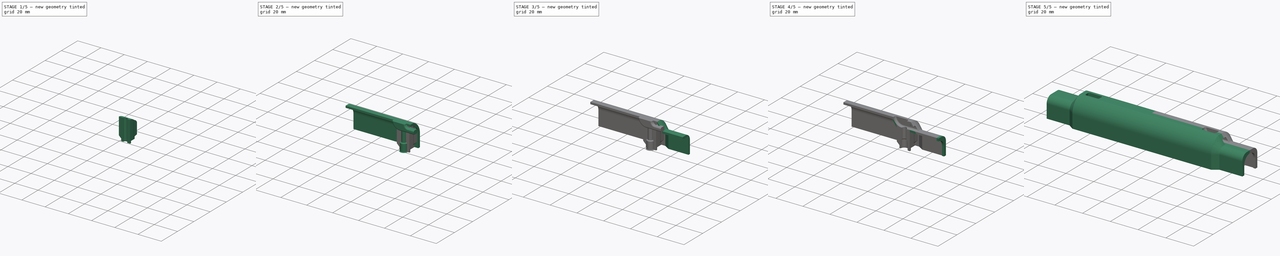
[diagram: build sequence overview — one tinted view per stage of 5, left to right]
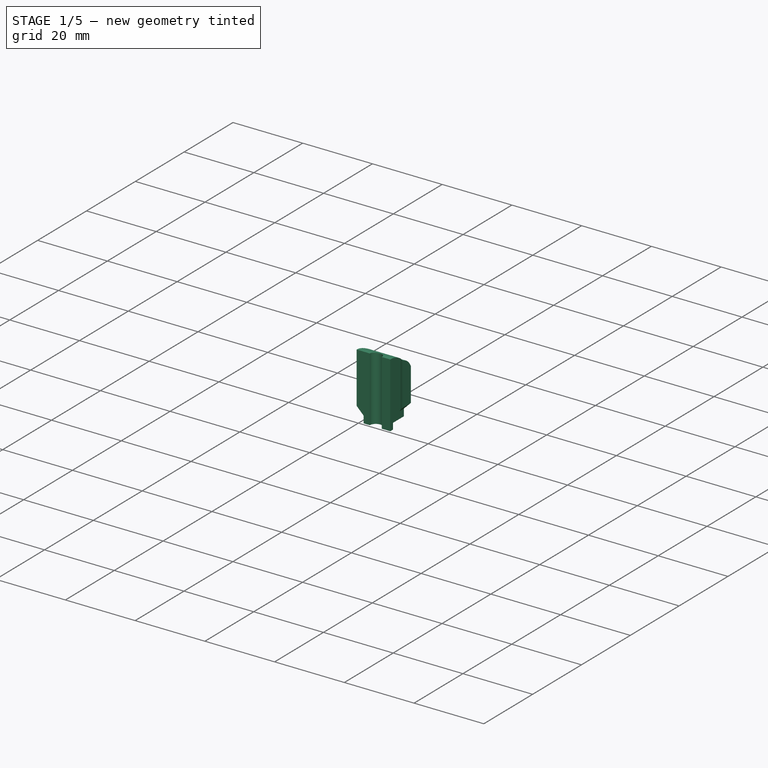
[diagram: stage 1 of 5 — iso view after this stage's code; geometry added in this stage tinted green]
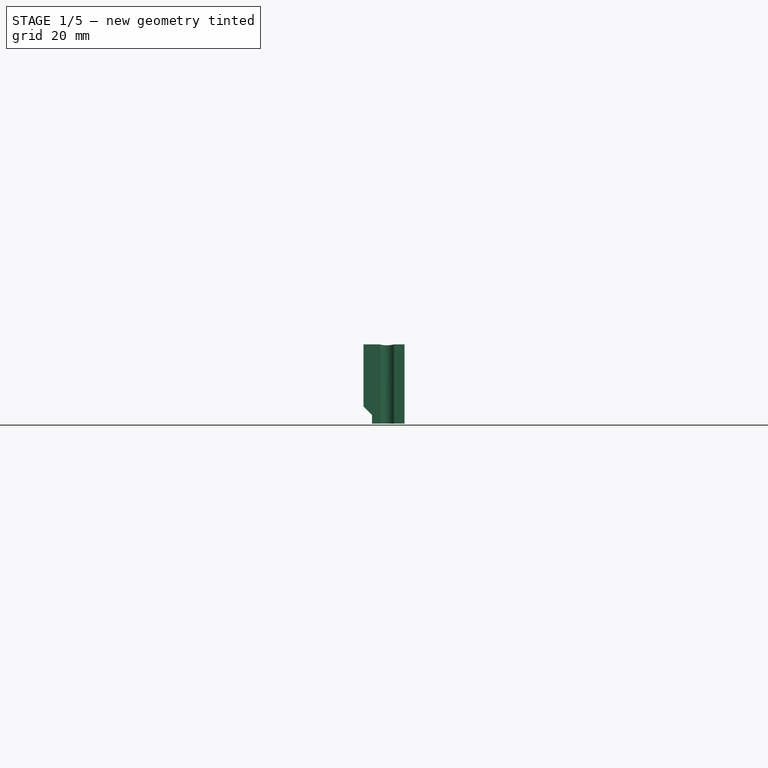
[diagram: stage 1 of 5 — front view after this stage's code; geometry added in this stage tinted green]
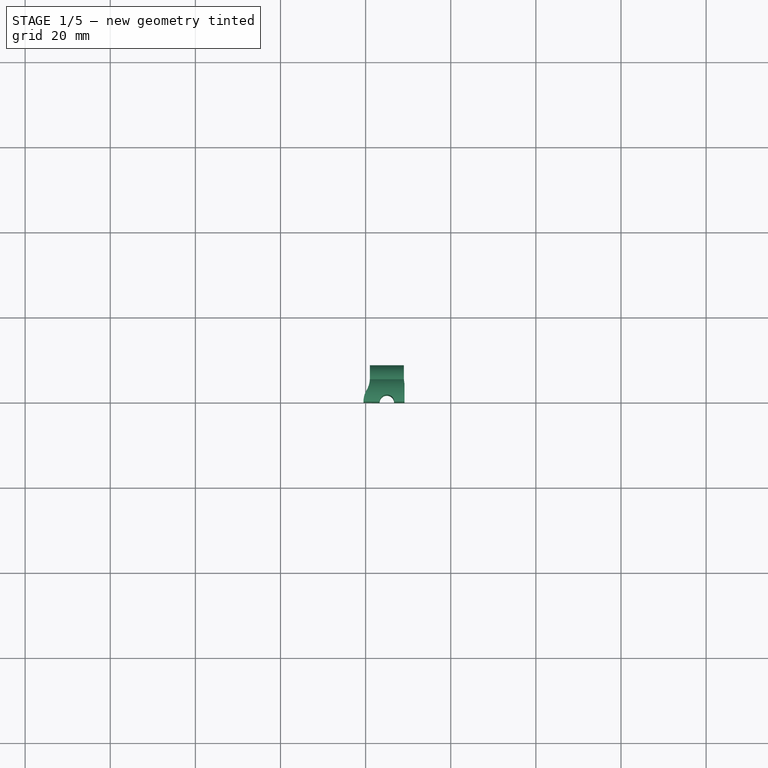
[diagram: stage 1 of 5 — top view after this stage's code; geometry added in this stage tinted green]
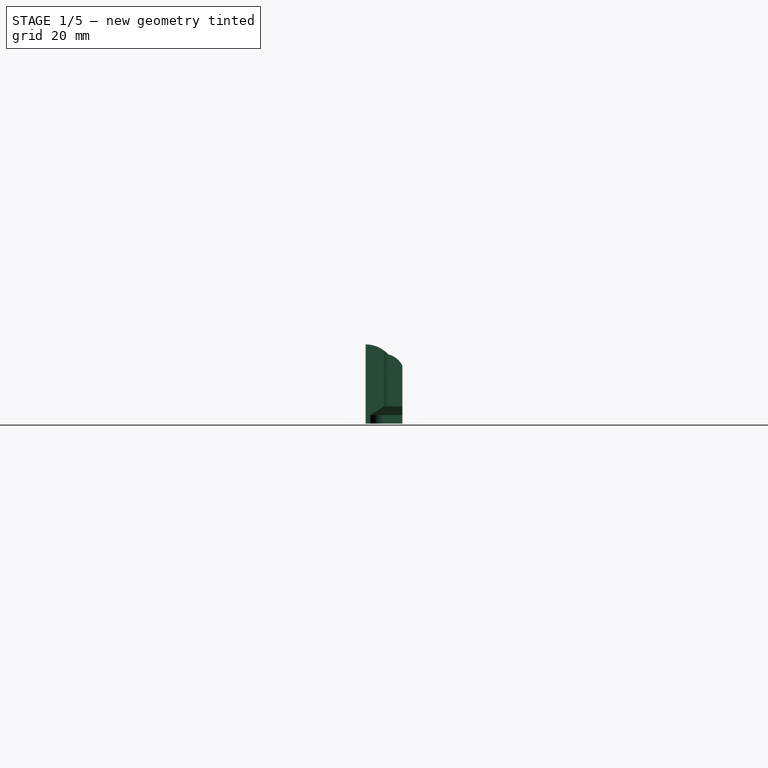
[diagram: stage 1 of 5 — right view after this stage's code; geometry added in this stage tinted green]
FCSTD DOCUMENT  (FreeCAD 0.19R24291 (Git))
Label: bottom-case
License: All rights reserved
LicenseURL: http://en.wikipedia.org/wiki/All_rights_reserved
objects: Sketcher::SketchObject×9, PartDesign::Pad×7, PartDesign::Plane×4, PartDesign::Body×3, Part::MultiFuse×3, PartDesign::AdditiveLoft×2, PartDesign::Pocket×2, PartDesign::Line×2, Part::Mirroring×2, PartDesign::Fillet×1, PartDesign::Revolution×1, Part::Cut×1
note: 50 computed .brp shape members not serialized (recipe doc carries the construction recipe); baked Part::Feature solids carry a one-line shape summary decoded from their .brp

FEATURE [Sketcher::SketchObject] Sketch007  label="CenterBase001"
  FullyConstrained = true
  MapMode = 5
  Placement = pos=(0,0,0) rot=(0.57735,0.57735,0.57735;2.0944rad)
  Support = -> [YZ_Plane001]
  sketch-geometry (9):
    g0: ArcOfCircle CenterX=4.15 CenterY=11.4 CenterZ=0 NormalX=0 NormalY=0 NormalZ=1 AngleXU=0 Radius=5 StartAngle=0 EndAngle=1.33692
    g1: LineSegment StartX=9.15 StartY=11.4 StartZ=0 EndX=9.15 EndY=0 EndZ=0
    g2: GeomPoint X=0 Y=2.5 Z=0
    g3: GeomPoint X=0 Y=16.4 Z=0
    g4: LineSegment StartX=4e-16 StartY=18.6 StartZ=0 EndX=4e-16 EndY=50 EndZ=0
    g5: LineSegment StartX=4e-16 StartY=50 StartZ=0 EndX=50 EndY=50 EndZ=0
    g6: LineSegment StartX=50 StartY=50 StartZ=0 EndX=50 EndY=0 EndZ=0
    g7: LineSegment StartX=50 StartY=0 StartZ=0 EndX=9.15 EndY=0 EndZ=0
    g8: ArcOfCircle CenterX=0 CenterY=11.4 CenterZ=0 NormalX=0 NormalY=0 NormalZ=1 AngleXU=0 Radius=7.2 StartAngle=0.741695 EndAngle=1.5708
  constraints (26):
    c: Vertical(g1)
    c: PointOnObject(g1,g-1)
    c: PointOnObject(g4,g-2)
    c: PointOnObject(g2,g-2)
    c: DistanceY(g-1,g2) = 2.5
    c: PointOnObject(g3,g-2)
    c: DistanceY(g2,g3) = 13.9
    c: Radius(g0) = 5
    c: Coincident(g4,g5)
    c: Horizontal(g5)
    c: Coincident(g5,g6)
    c: Vertical(g6)
    c: Coincident(g6,g7)
    c: Coincident(g7,g1)
    c: Horizontal(g7)
    c: Vertical(g4)
    c: DistanceX(g5,g5) = 50
    c: Equal(g5,g6)
    c: DistanceX(g-1,g1) = 9.15
    c: Tangent(g1,g0) = 1.5708
    c: DistanceY(g0,g3) = 5
    c: PointOnObject(g8,g-2)
    c: Coincident(g8,g0)
    c: Radius(g8) = 7.2
    c: DistanceY(g8,g3) = 5
    c: Coincident(g4,g8)
FEATURE [PartDesign::Pad] Pad004  label="MoutingBossTop"
  Direction = (1,1,1)
  Length = 4
  Length2 = 100
  Profile = -> Sketch004
  Reversed = true
  Type = 3
  UpToFace = -> XY_Plane001
FEATURE [PartDesign::Body] Body002  label="RingAndHoles"
  Group = -> [DatumPlane003,DatumLine001,Sketch010,Pad007,Fillet001,Sketch011,Revolution]
  Origin = -> Origin002
  Tip = -> Revolution
FEATURE [Sketcher::SketchObject] Sketch012  label="MoutingBossSketchLarge"
  AttachmentOffset = pos=(0,0,4) rot=(0,0,1;0rad)
  FullyConstrained = true
  MapMode = 5
  Placement = pos=(0,0,4) rot=(0,0,1;0rad)
  Support = -> [XY_Plane001]
  sketch-geometry (11):
    g0: ArcOfCircle CenterX=45 CenterY=0 CenterZ=0 NormalX=0 NormalY=0 NormalZ=1 AngleXU=0 Radius=1.7 StartAngle=0 EndAngle=3.14159
    g1: LineSegment StartX=39.5 StartY=7e-16 StartZ=0 EndX=43.3 EndY=2e-16 EndZ=0
    g2: LineSegment StartX=46.7 StartY=0 StartZ=0 EndX=49.15 EndY=0 EndZ=0
    g3: LineSegment StartX=41 StartY=8.65 StartZ=0 EndX=41 EndY=5.54527 EndZ=0
    g4: LineSegment StartX=41 StartY=8.65 StartZ=0 EndX=49 EndY=8.65 EndZ=0
    g5: LineSegment StartX=49 StartY=8.65 StartZ=0 EndX=49 EndY=5.54529 EndZ=0
    g6: ArcOfCircle CenterX=45 CenterY=0 CenterZ=0 NormalX=0 NormalY=0 NormalZ=1 AngleXU=0 Radius=5.5 StartAngle=2.61324 EndAngle=3.14159
    g7: ArcOfCircle CenterX=35.5 CenterY=5.54527 CenterZ=0 NormalX=0 NormalY=0 NormalZ=1 AngleXU=0 Radius=5.5 StartAngle=5.75483 EndAngle=6.28319
    g8: ArcOfCircle CenterX=54.5 CenterY=5.54527 CenterZ=0 NormalX=0 NormalY=0 NormalZ=1 AngleXU=0 Radius=5.5 StartAngle=3.14159 EndAngle=3.37568
    g9: LineSegment StartX=45 StartY=0 StartZ=0 EndX=45 EndY=8.65 EndZ=0
    g10: LineSegment StartX=49.15 StartY=0 StartZ=0 EndX=49.15 EndY=4.26953 EndZ=0
  constraints (32):
    c: PointOnObject(g0,g-1)
    c: PointOnObject(g0,g-1)
    c: PointOnObject(g0,g-1)
    c: PointOnObject(g1,g-1)
    c: PointOnObject(g2,g-1)
    c: Coincident(g2,g0)
    c: Coincident(g0,g1)
    c: Radius(g0) = 1.7
    c: DistanceX(g-1,g0) = 45
    c: Vertical(g3)
    c: Coincident(g4,g3)
    c: Coincident(g5,g4)
    c: Vertical(g5)
    c: Coincident(g6,g0)
    c: Coincident(g6,g1)
    c: Radius(g6) = 5.5
    c: Equal(g7,g6)
    c: Equal(g6,g8)
    c: Tangent(g7,g6) = 1.5708
    c: Tangent(g7,g3) = 1.5708
    c: Coincident(g9,g0)
    c: PointOnObject(g9,g4)
    c: Vertical(g9)
    c: DistanceX(g4,g4) = 8
    c: Symmetric(g4,g3,g9)
    c: DistanceY(g1,g3) = 8.65
    c: Coincident(g10,g2)
    c: Vertical(g10)
    c: Symmetric(g7,g8,g9)
    c: Coincident(g10,g8)
    c: DistanceX(g0,g2) = 4.15
    c: Coincident(g5,g8)
FEATURE [PartDesign::AdditiveLoft] AdditiveLoft001  label="MountingBossTransition"
  BaseFeature = -> Pad004
  Closed = false
  Profile = -> Sketch012
  Ruled = false
  Sections = -> [Sketch004]
FEATURE [PartDesign::Pad] Pad009  label="MountingBossBottom"
  BaseFeature = -> AdditiveLoft001
  Direction = (1,1,1)
  Length = 20
  Length2 = 100
  Profile = -> Sketch012
  Type = 0
FEATURE [PartDesign::Pocket] Pocket001  label="ProfileCutout"
  BaseFeature = -> Pad009
  Length = 5
  Length2 = 100
  Midplane = true
  Profile = -> Sketch007
  Type = 1
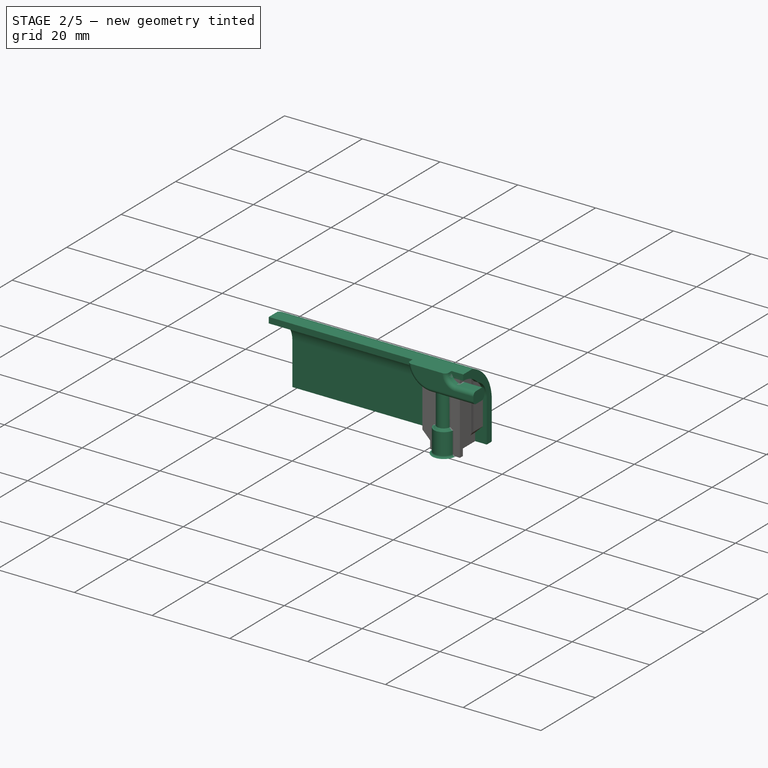
[diagram: stage 2 of 5 — iso view after this stage's code; geometry added in this stage tinted green]
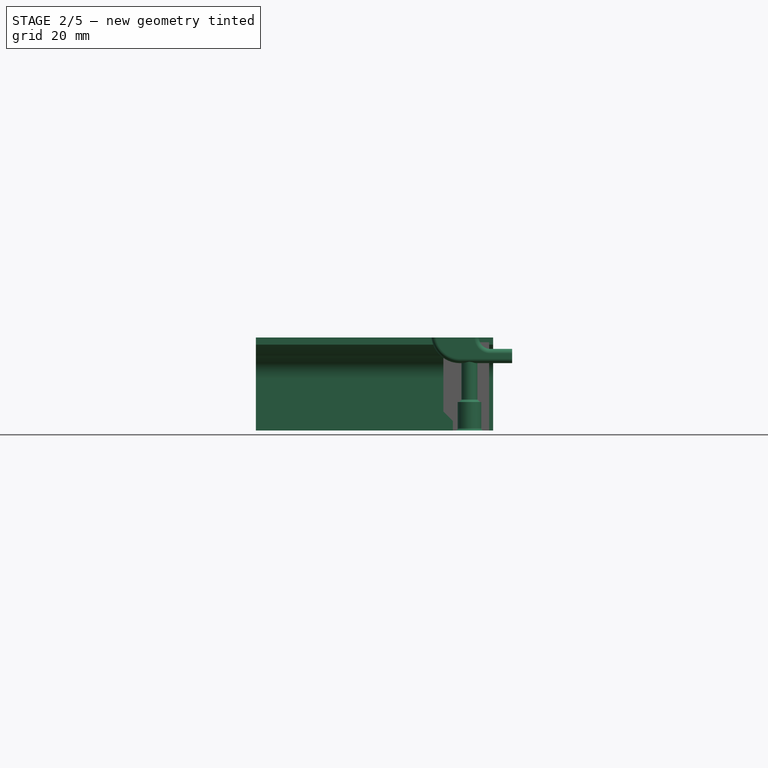
[diagram: stage 2 of 5 — front view after this stage's code; geometry added in this stage tinted green]
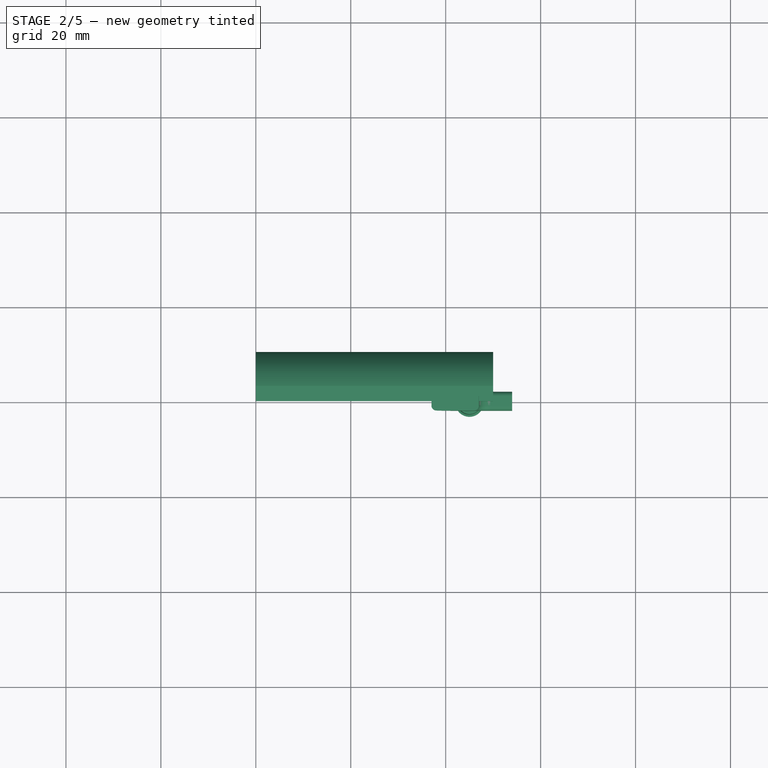
[diagram: stage 2 of 5 — top view after this stage's code; geometry added in this stage tinted green]
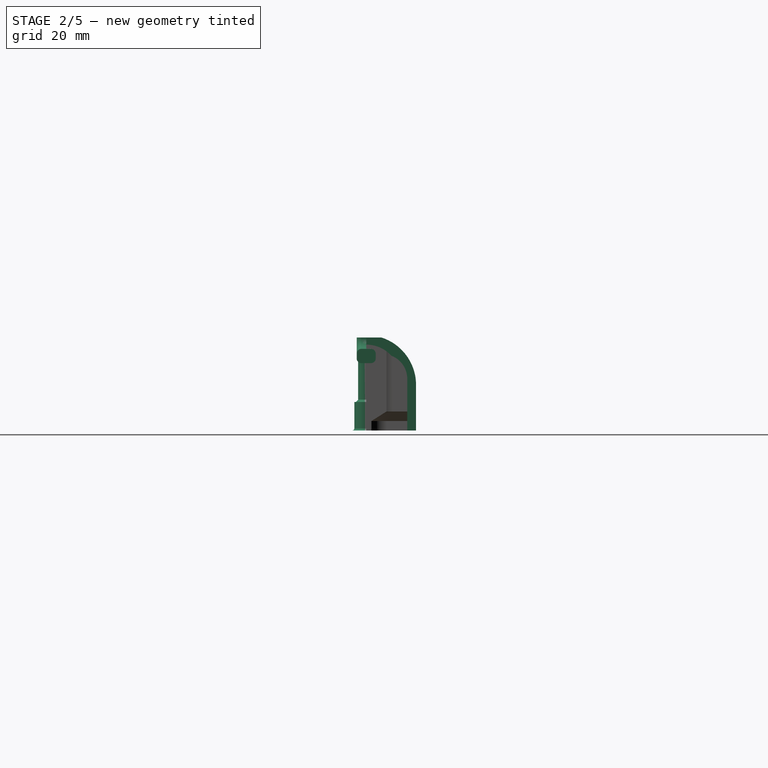
[diagram: stage 2 of 5 — right view after this stage's code; geometry added in this stage tinted green]
FEATURE [Sketcher::SketchObject] Sketch001  label="Slim1"
  AttachmentOffset = pos=(0,0,54) rot=(0,0,1;0rad)
  FullyConstrained = true
  MapMode = 5
  Placement = pos=(54,-1.2e-14,1.2e-14) rot=(0.57735,0.57735,0.57735;2.0944rad)
  Support = -> [YZ_Plane]
  sketch-geometry (11):
    g0: ArcOfCircle CenterX=3.2 CenterY=9.7 CenterZ=0 NormalX=0 NormalY=0 NormalZ=1 AngleXU=0 Radius=3 StartAngle=4.38246e-06 EndAngle=1.5708
    g1: ArcOfCircle CenterX=3.2 CenterY=9.7 CenterZ=0 NormalX=0 NormalY=0 NormalZ=1 AngleXU=0 Radius=4.5 StartAngle=0 EndAngle=1.5708
    g2: LineSegment StartX=6.2 StartY=9.70001 StartZ=0 EndX=6.2 EndY=0 EndZ=0
    g3: LineSegment StartX=7.7 StartY=9.7 StartZ=0 EndX=7.7 EndY=0 EndZ=0
    g4: LineSegment StartX=6.2 StartY=0 StartZ=0 EndX=7.7 EndY=0 EndZ=0
    g5: GeomPoint X=6 Y=0 Z=0
    g6: LineSegment StartX=3.2 StartY=14.2 StartZ=0 EndX=0 EndY=14.2 EndZ=0
    g7: LineSegment StartX=0 StartY=14.2 StartZ=0 EndX=0 EndY=12.7 EndZ=0
    g8: LineSegment StartX=0 StartY=12.7 StartZ=0 EndX=3.2 EndY=12.7 EndZ=0
    g9: GeomPoint X=0 Y=12.5 Z=0
    g10: GeomPoint X=0 Y=1 Z=0
  constraints (30):
    c: Coincident(g1,g0)
    c: Coincident(g2,g0)
    c: Vertical(g2)
    c: Vertical(g3)
    c: Coincident(g4,g2)
    c: Coincident(g4,g3)
    c: Horizontal(g4)
    c: PointOnObject(g2,g-1)
    c: PointOnObject(g5,g-1)
    c: Tangent(g3,g1) = 1.5708
    c: Horizontal(g6)
    c: Coincident(g7,g6)
    c: Vertical(g7)
    c: Coincident(g8,g7)
    c: Horizontal(g8)
    c: PointOnObject(g7,g-2)
    c: Tangent(g6,g1) = -1.5708
    c: Tangent(g8,g0) = 1.5708
    c: DistanceY(g7,g7) = 1.5
    c: PointOnObject(g9,g-2)
    c: DistanceY(g9,g7) = 0.2
    c: Radius(g0) = 3
    c: DistanceX(g-1,g5) = 6
    c: DistanceX(g5,g2) = 0.2
    c: PointOnObject(g10,g-2)
    c: DistanceY(g-1,g10) = 1
    c: DistanceY(g10,g9) = 11.5
    c: Equal(g7,g4)
    c: DistanceX(g-1,g3) = 7.7
    c: DistanceX(g8,g8) = 3.2
FEATURE [PartDesign::Plane] DatumPlane  label="FrontPlane"
  AttachmentOffset = pos=(0,0,69) rot=(0,0,1;0rad)
  Length = 60
  MapMode = 5
  Placement = pos=(69,-1.53e-14,1.53e-14) rot=(0.57735,0.57735,0.57735;2.0944rad)
  ResizeMode = 0
  Support = -> [YZ_Plane]
  Width = 60
FEATURE [Sketcher::SketchObject] Sketch003
  FullyConstrained = true
  MapMode = 5
  Placement = pos=(69,-1.53e-14,1.53e-14) rot=(0.57735,0.57735,0.57735;2.0944rad)
  Support = -> [DatumPlane]
  sketch-geometry (5):
    g0: LineSegment StartX=6 StartY=12.7 StartZ=0 EndX=0 EndY=12.7 EndZ=0
    g1: LineSegment StartX=0 StartY=12.7 StartZ=0 EndX=0 EndY=0 EndZ=0
    g2: LineSegment StartX=0 StartY=0 StartZ=0 EndX=6.2 EndY=0 EndZ=0
    g3: LineSegment StartX=6.2 StartY=0 StartZ=0 EndX=6.2 EndY=12.5 EndZ=0
    g4: ArcOfCircle CenterX=6 CenterY=12.5 CenterZ=0 NormalX=0 NormalY=0 NormalZ=1 AngleXU=0 Radius=0.2 StartAngle=0 EndAngle=1.5708
  constraints (13):
    c: Horizontal(g0)
    c: Coincident(g0,g1)
    c: Vertical(g1)
    c: Coincident(g1,g2)
    c: Horizontal(g2)
    c: Coincident(g2,g3)
    c: Vertical(g3)
    c: Tangent(g4,g0) = -1.5708
    c: Tangent(g4,g3) = -1.5708
    c: Coincident(g1,g-1)
    c: DistanceY(g1,g1) = 12.7
    c: DistanceX(g2,g2) = 6.2
    c: Radius(g4) = 0.2
FEATURE [Sketcher::SketchObject] Sketch004  label="MoutingBossSketch"
  AttachmentOffset = pos=(0,0,2) rot=(0,0,1;0rad)
  FullyConstrained = true
  MapMode = 5
  Placement = pos=(0,0,2) rot=(0,0,1;0rad)
  Support = -> [XY_Plane001]
  sketch-geometry (11):
    g0: ArcOfCircle CenterX=45 CenterY=0 CenterZ=0 NormalX=0 NormalY=0 NormalZ=1 AngleXU=0 Radius=1.7 StartAngle=0 EndAngle=3.14159
    g1: LineSegment StartX=41.5 StartY=0 StartZ=0 EndX=43.3 EndY=2e-16 EndZ=0
    g2: LineSegment StartX=46.7 StartY=0 StartZ=0 EndX=49.15 EndY=0 EndZ=0
    g3: LineSegment StartX=43 StartY=8.65 StartZ=0 EndX=43 EndY=4.33013 EndZ=0
    g4: LineSegment StartX=43 StartY=8.65 StartZ=0 EndX=47 EndY=8.65 EndZ=0
    g5: LineSegment StartX=47 StartY=8.65 StartZ=0 EndX=47 EndY=4.33013 EndZ=0
    g6: ArcOfCircle CenterX=45 CenterY=0 CenterZ=0 NormalX=0 NormalY=0 NormalZ=1 AngleXU=0 Radius=3.5 StartAngle=2.47465 EndAngle=3.14159
    g7: ArcOfCircle CenterX=39.5 CenterY=4.33013 CenterZ=0 NormalX=0 NormalY=0 NormalZ=1 AngleXU=0 Radius=3.5 StartAngle=5.61624 EndAngle=6.28319
    g8: ArcOfCircle CenterX=50.5 CenterY=4.33013 CenterZ=0 NormalX=0 NormalY=0 NormalZ=1 AngleXU=0 Radius=3.5 StartAngle=3.14159 EndAngle=4.31641
    g9: LineSegment StartX=45 StartY=0 StartZ=0 EndX=45 EndY=8.65 EndZ=0
    g10: LineSegment StartX=49.15 StartY=0 StartZ=0 EndX=49.15 EndY=1.10096 EndZ=0
  constraints (32):
    c: PointOnObject(g0,g-1)
    c: PointOnObject(g0,g-1)
    c: PointOnObject(g0,g-1)
    c: PointOnObject(g1,g-1)
    c: PointOnObject(g2,g-1)
    c: Coincident(g2,g0)
    c: Coincident(g0,g1)
    c: Radius(g0) = 1.7
    c: DistanceX(g-1,g0) = 45
    c: Vertical(g3)
    c: Coincident(g4,g3)
    c: Coincident(g5,g4)
    c: Vertical(g5)
    c: Coincident(g6,g0)
    c: Coincident(g6,g1)
    c: Radius(g6) = 3.5
    c: Equal(g7,g6)
    c: Equal(g6,g8)
    c: Tangent(g7,g6) = 1.5708
    c: Tangent(g7,g3) = 1.5708
    c: Coincident(g9,g0)
    c: PointOnObject(g9,g4)
    c: Vertical(g9)
    c: DistanceX(g4,g4) = 4
    c: Symmetric(g4,g3,g9)
    c: DistanceY(g1,g3) = 8.65
    c: Coincident(g10,g2)
    c: Vertical(g10)
    c: Symmetric(g7,g8,g9)
    c: Coincident(g10,g8)
    c: DistanceX(g0,g2) = 4.15
    c: Coincident(g5,g8)
FEATURE [Sketcher::SketchObject] Sketch006  label="ProbeHole"
  FullyConstrained = true
  MapMode = 5
  Placement = pos=(69,-1.53e-14,1.53e-14) rot=(0.57735,0.57735,0.57735;2.0944rad)
  Support = -> [DatumPlane]
  sketch-geometry (8):
    g0: ArcOfCircle CenterX=3.2 CenterY=9.7 CenterZ=0 NormalX=0 NormalY=0 NormalZ=1 AngleXU=0 Radius=4.5 StartAngle=1.67e-14 EndAngle=1.5708
    g1: LineSegment StartX=5.7 StartY=6.5 StartZ=0 EndX=5.7 EndY=0 EndZ=0
    g2: LineSegment StartX=7.7 StartY=9.7 StartZ=0 EndX=7.7 EndY=0 EndZ=0
    g3: LineSegment StartX=5.7 StartY=0 StartZ=0 EndX=7.7 EndY=0 EndZ=0
    g4: LineSegment StartX=3.2 StartY=14.2 StartZ=0 EndX=4e-16 EndY=14.2 EndZ=0
    g5: LineSegment StartX=4e-16 StartY=14.2 StartZ=0 EndX=4e-16 EndY=12.2 EndZ=0
    g6: GeomPoint X=0 Y=1 Z=0
    g7: ArcOfCircle CenterX=0 CenterY=6.5 CenterZ=0 NormalX=0 NormalY=0 NormalZ=1 AngleXU=0 Radius=5.7 StartAngle=0 EndAngle=1.5708
  constraints (23):
    c: Vertical(g1)
    c: Vertical(g2)
    c: Coincident(g3,g1)
    c: Coincident(g3,g2)
    c: Horizontal(g3)
    c: PointOnObject(g1,g-1)
    c: Tangent(g2,g0) = 1.5708
    c: Horizontal(g4)
    c: Coincident(g5,g4)
    c: Vertical(g5)
    c: Tangent(g4,g0) = -1.5708
    c: PointOnObject(g6,g-2)
    c: DistanceY(g-1,g6) = 1
    c: Radius(g0) = 4.5
    c: PointOnObject(g7,g-2)
    c: PointOnObject(g7,g-2)
    c: Radius(g7) = 5.7
    c: Tangent(g1,g7) = 1.5708
    c: DistanceY(g6,g7) = 5.5
    c: DistanceY(g6,g4) = 13.2
    c: Coincident(g5,g7)
    c: DistanceX(g-1,g2) = 7.7
    c: DistanceX(g-1,g1) = 5.7
FEATURE [PartDesign::Plane] DatumPlane001  label="WideEndPlane"
  AttachmentOffset = pos=(0,0,50) rot=(0,0,1;0rad)
  Length = 60
  MapMode = 5
  Placement = pos=(50,-1.11e-14,1.11e-14) rot=(0.57735,0.57735,0.57735;2.0944rad)
  ResizeMode = 0
  Support = -> [YZ_Plane]
  Width = 60
FEATURE [Sketcher::SketchObject] Sketch  label="CenterBase"
  FullyConstrained = true
  MapMode = 5
  Placement = pos=(50,-1.11e-14,1.11e-14) rot=(0.57735,0.57735,0.57735;2.0944rad)
  Support = -> [DatumPlane001]
  sketch-geometry (12):
    g0: LineSegment StartX=8.65 StartY=10.9 StartZ=0 EndX=8.65 EndY=0 EndZ=0
    g1: LineSegment StartX=10.5 StartY=9.5995 StartZ=0 EndX=10.5 EndY=0 EndZ=0
    g2: LineSegment StartX=8.65 StartY=0 StartZ=0 EndX=10.5 EndY=0 EndZ=0
    g3: GeomPoint X=9 Y=0 Z=0
    g4: LineSegment StartX=4e-16 StartY=19.6 StartZ=0 EndX=4e-16 EndY=18.1 EndZ=0
    g5: GeomPoint X=0 Y=2 Z=0
    g6: GeomPoint X=0 Y=15.9 Z=0
    g7: ArcOfCircle CenterX=0 CenterY=10.9 CenterZ=0 NormalX=0 NormalY=0 NormalZ=1 AngleXU=0 Radius=7.2 StartAngle=0.739541 EndAngle=1.5708
    g8: ArcOfCircle CenterX=0 CenterY=9.5995 CenterZ=0 NormalX=0 NormalY=0 NormalZ=1 AngleXU=0 Radius=10.5 StartAngle=1e-16 EndAngle=1.26111
    g9: ArcOfCircle CenterX=3.45 CenterY=10.9 CenterZ=0 NormalX=0 NormalY=0 NormalZ=1 AngleXU=0 Radius=5.2 StartAngle=0 EndAngle=1.2031
    g10: LineSegment StartX=9.82512 StartY=13.3031 StartZ=0 EndX=8.31577 EndY=12.7342 EndZ=0
    g11: LineSegment StartX=3.2 StartY=19.6 StartZ=0 EndX=4e-16 EndY=19.6 EndZ=0
  constraints (38):
    c: Vertical(g0)
    c: Vertical(g1)
    c: Coincident(g2,g0)
    c: Coincident(g2,g1)
    c: Horizontal(g2)
    c: PointOnObject(g0,g-1)
    c: PointOnObject(g3,g-1)
    c: DistanceX(g-1,g3) = 9
    c: Vertical(g4)
    c: PointOnObject(g4,g-2)
    c: DistanceX(g3,g1) = 1.5
    c: PointOnObject(g5,g-2)
    c: DistanceY(g-1,g5) = 2
    c: PointOnObject(g6,g-2)
    c: DistanceY(g5,g6) = 13.9
    c: DistanceX(g-1,g1) = 10.5
    c: PointOnObject(g7,g-2)
    c: Coincident(g4,g7)
    c: Radius(g7) = 7.2
    c: DistanceY(g7,g6) = 5
    c: Tangent(g8,g1) = 1.5708
    c: DistanceY(g4,g4) = 1.5
    c: DistanceX(g-1,g0) = 8.65
    c: Radius(g9) = 5.2
    c: Tangent(g9,g0) = 1.5708
    c: DistanceY(g9,g6) = 5
    c: Coincident(g7,g9)
    c: PointOnObject(g10,g8)
    c: PointOnObject(g10,g9)
    c: Perpendicular(g8,g10)
    c: PointOnObject(g9,g10)
    c: Distance(g10) = 1.61302
    c: PointOnObject(g8,g-2)
    c: Coincident(g11,g8)
    c: Coincident(g11,g4)
    c: Horizontal(g11)
    c: DistanceX(g11,g11) = 3.2
    c: DistanceY(g6,g4) = 2.2
FEATURE [PartDesign::Pad] Pad  label="CenterBody"
  Direction = (1,1,1)
  Length = 50
  Length2 = 100
  Placement = pos=(50,-1.11e-14,1.11e-14) rot=(0.57735,0.57735,0.57735;2.0944rad)
  Profile = -> Sketch
  Reversed = true
  Type = 3
  UpToFace = -> YZ_Plane
FEATURE [PartDesign::Body] Body  label="Case"
  Group = -> [DatumPlane001,DatumPlane,DatumLine,DatumPlane002,Sketch,Sketch001,Pad,AdditiveLoft,Pad001,Pocket,Sketch003,Sketch006,Pad003,Pad008]
  Origin = -> Origin
  Tip = -> Pad008
FEATURE [PartDesign::Line] DatumLine001  label="MountingHoleAxis"
  AttacherType = Attacher::AttachEngineLine
  AttachmentOffset = pos=(45,0,0) rot=(0,0,1;0rad)
  Length = 20
  MapMode = 29
  Placement = pos=(45,0,1.5e-14) rot=(0,0,1;0rad)
  ResizeMode = 0
  Support = -> [Z_Axis002]
FEATURE [Sketcher::SketchObject] Sketch010
  ExternalGeometry = -> [DatumLine001]
  FullyConstrained = true
  MapMode = 5
  Placement = pos=(0,0,0) rot=(1,0,0;1.5708rad)
  Support = -> [XZ_Plane002]
  sketch-geometry (7):
    g0: LineSegment StartX=49.4 StartY=17.2 StartZ=0 EndX=54 EndY=17.2 EndZ=0
    g1: LineSegment StartX=54 StartY=17.2 StartZ=0 EndX=54 EndY=14.2 EndZ=0
    g2: LineSegment StartX=54 StartY=14.2 StartZ=0 EndX=43 EndY=14.2 EndZ=0
    g3: LineSegment StartX=37 StartY=19.6 StartZ=0 EndX=47 EndY=19.6 EndZ=0
    g4: GeomPoint X=45 Y=19.6 Z=0
    g5: ArcOfCircle CenterX=43 CenterY=20.2333 CenterZ=0 NormalX=0 NormalY=0 NormalZ=1 AngleXU=0 Radius=6.03333 StartAngle=3.24676 EndAngle=4.71239
    g6: ArcOfCircle CenterX=49.4 CenterY=19.6 CenterZ=0 NormalX=0 NormalY=0 NormalZ=1 AngleXU=0 Radius=2.4 StartAngle=3.14159 EndAngle=4.71239
  constraints (21):
    c: Coincident(g1,g0)
    c: Vertical(g1)
    c: Horizontal(g2)
    c: Horizontal(g0)
    c: Coincident(g1,g2)
    c: DistanceY(g-1,g1) = 14.2
    c: DistanceY(g1,g1) = 3
    c: DistanceX(g-1,g1) = 54
    c: Horizontal(g3)
    c: DistanceY(g1,g3) = 5.4
    c: DistanceX(g3,g3) = 10
    c: PointOnObject(g4,g3)
    c: DistanceX(g4,g3) = 2
    c: DistanceX(g3,g4) = 8
    c: PointOnObject(g4,g-3)
    c: Coincident(g3,g5)
    c: Tangent(g5,g2) = 1.5708
    c: DistanceX(g2,g4) = 2
    c: Coincident(g6,g3)
    c: Tangent(g6,g0) = -1.5708
    c: PointOnObject(g6,g3)
FEATURE [PartDesign::Pad] Pad007  label="RingHoleNegative"
  Direction = (1,1,1)
  Length = 4
  Length2 = 100
  Midplane = true
  Placement = pos=(0,0,0) rot=(1,0,0;1.5708rad)
  Profile = -> Sketch010
  Type = 0
FEATURE [PartDesign::Fillet] Fillet001  label="RingHoleFilet"
  Base = -> Pad007 [Edge3,Edge4,Edge13,Edge12,Edge9,Edge10,Edge18,Edge17]
  BaseFeature = -> Pad007
  Placement = pos=(0,0,0) rot=(1,0,0;1.5708rad)
  Radius = 0.99
  SupportTransform = false
FEATURE [PartDesign::Plane] DatumPlane003  label="BottomPlane"
  AttachmentOffset = pos=(0,0,19.6) rot=(0,0,1;0rad)
  Length = 91.5698
  MapMode = 2
  Placement = pos=(0,0,19.6) rot=(0,0,1;0rad)
  ResizeMode = 0
  Support = -> [XY_Plane002]
  Width = 62.5698
FEATURE [Sketcher::SketchObject] Sketch011
  ExternalGeometry = -> [DatumPlane003,DatumLine001]
  FullyConstrained = true
  MapMode = 5
  Placement = pos=(0,0,0) rot=(1,0,0;1.5708rad)
  Support = -> [XZ_Plane002]
  sketch-geometry (8):
    g0: LineSegment StartX=45 StartY=19.6 StartZ=0 EndX=46.7 EndY=19.6 EndZ=0
    g1: LineSegment StartX=46.7 StartY=19.6 StartZ=0 EndX=46.7 EndY=6.5 EndZ=0
    g2: LineSegment StartX=45 StartY=19.6 StartZ=0 EndX=45 EndY=0 EndZ=0
    g3: LineSegment StartX=45 StartY=0 StartZ=0 EndX=48 EndY=0 EndZ=0
    g4: ArcOfCircle CenterX=48 CenterY=0.5 CenterZ=0 NormalX=0 NormalY=0 NormalZ=1 AngleXU=0 Radius=0.5 StartAngle=3.14159 EndAngle=4.71239
    g5: LineSegment StartX=47.5 StartY=0.5 StartZ=0 EndX=47.5 EndY=6 EndZ=0
    g6: LineSegment StartX=47.5 StartY=6 StartZ=0 EndX=47.2 EndY=6 EndZ=0
    g7: LineSegment StartX=47.2 StartY=6 StartZ=0 EndX=46.7 EndY=6.5 EndZ=0
  constraints (23):
    c: Horizontal(g0)
    c: Coincident(g1,g0)
    c: Vertical(g1)
    c: Coincident(g2,g0)
    c: Vertical(g2)
    c: PointOnObject(g2,g-1)
    c: Coincident(g3,g2)
    c: Vertical(g5)
    c: Coincident(g6,g5)
    c: Horizontal(g6)
    c: Coincident(g7,g6)
    c: Coincident(g1,g7)
    c: Tangent(g5,g4) = 1.5708
    c: Tangent(g4,g3) = -1.5708
    c: Horizontal(g3)
    c: PointOnObject(g2,g-4)
    c: Angle(g6,g7) = 2.35619
    c: DistanceX(g2,g4) = 2.5
    c: Radius(g4) = 0.5
    c: DistanceX(g2,g1) = 1.7
    c: DistanceY(g6,g1) = 0.5
    c: DistanceY(g2,g6) = 6
    c: PointOnObject(g0,g-3)
FEATURE [PartDesign::Revolution] Revolution  label="ScrewHoleRevolution"
  Angle = 360
  Axis = (-3e-16,3e-16,1)
  Base = (45,0,1.5e-14)
  BaseFeature = -> Fillet001
  Placement = pos=(0,0,0) rot=(1,0,0;1.5708rad)
  Profile = -> Sketch011
  ReferenceAxis = -> DatumLine001
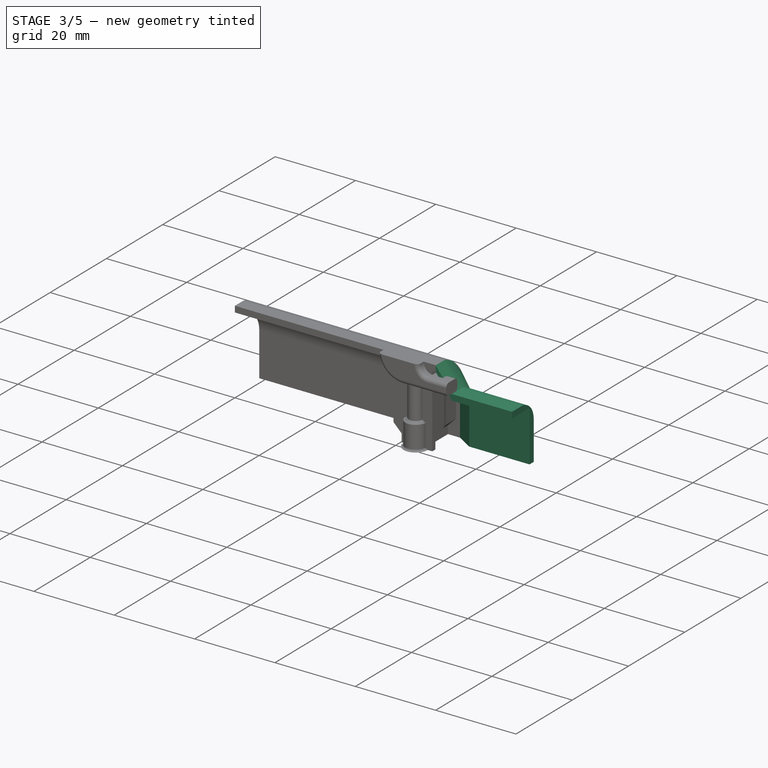
[diagram: stage 3 of 5 — iso view after this stage's code; geometry added in this stage tinted green]
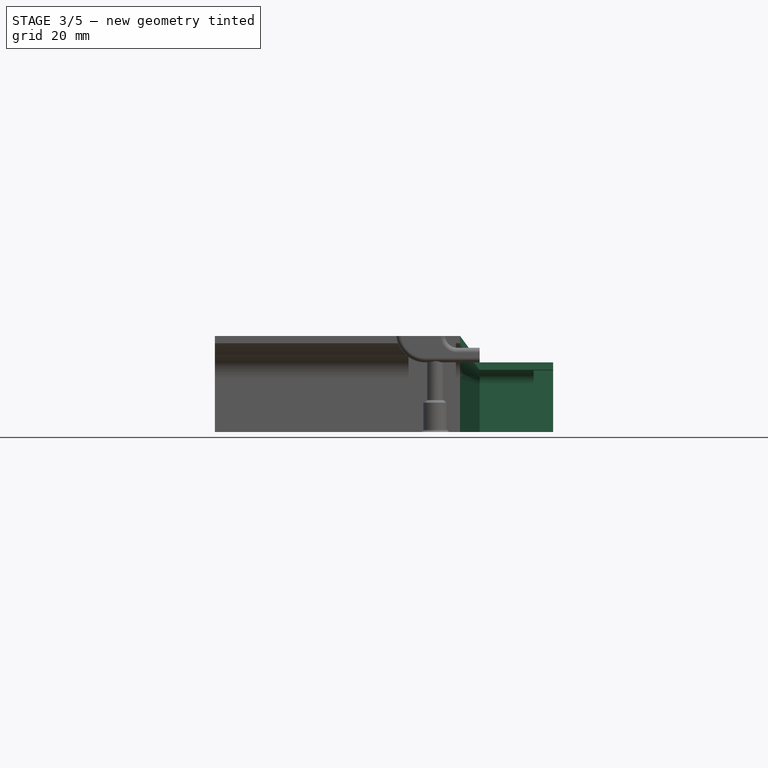
[diagram: stage 3 of 5 — front view after this stage's code; geometry added in this stage tinted green]
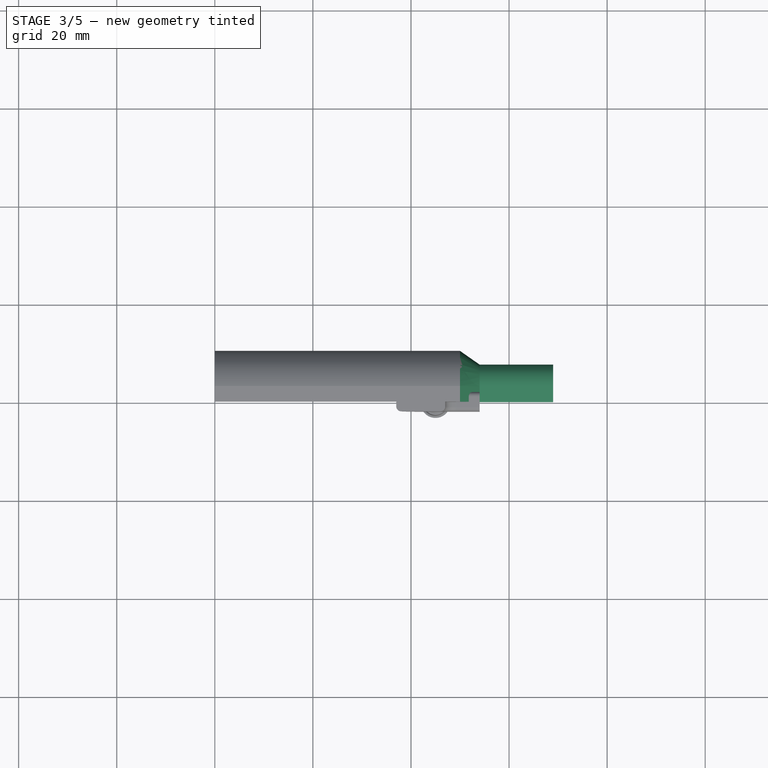
[diagram: stage 3 of 5 — top view after this stage's code; geometry added in this stage tinted green]
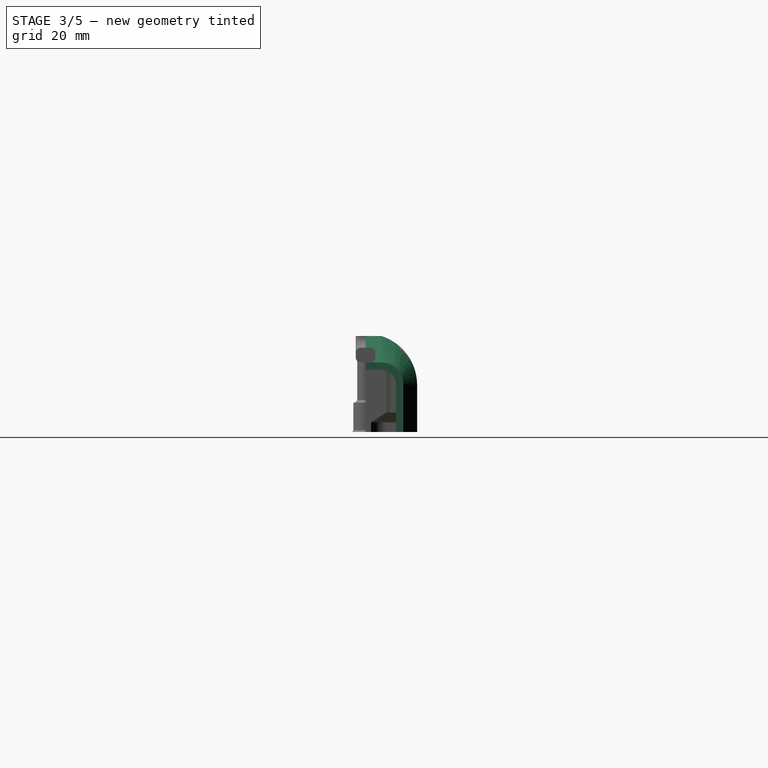
[diagram: stage 3 of 5 — right view after this stage's code; geometry added in this stage tinted green]
FEATURE [PartDesign::AdditiveLoft] AdditiveLoft
  BaseFeature = -> Pad
  Closed = false
  Placement = pos=(50,-1.11e-14,1.11e-14) rot=(0.57735,0.57735,0.57735;2.0944rad)
  Profile = -> Sketch001
  Ruled = false
  Sections = -> [Sketch]
FEATURE [PartDesign::Pad] Pad001  label="SlimBody"
  BaseFeature = -> AdditiveLoft
  Direction = (1,1,1)
  Length = 14
  Length2 = 100
  Placement = pos=(50,-1.11e-14,1.11e-14) rot=(0.57735,0.57735,0.57735;2.0944rad)
  Profile = -> Sketch001
  Type = 3
  UpToFace = -> DatumPlane [Plane]
FEATURE [PartDesign::Pocket] Pocket  label="BananaJackFlat"
  BaseFeature = -> Pad001
  Length = 4
  Length2 = 100
  Placement = pos=(50,-1.11e-14,1.11e-14) rot=(0.57735,0.57735,0.57735;2.0944rad)
  Profile = -> Sketch003
  Type = 0
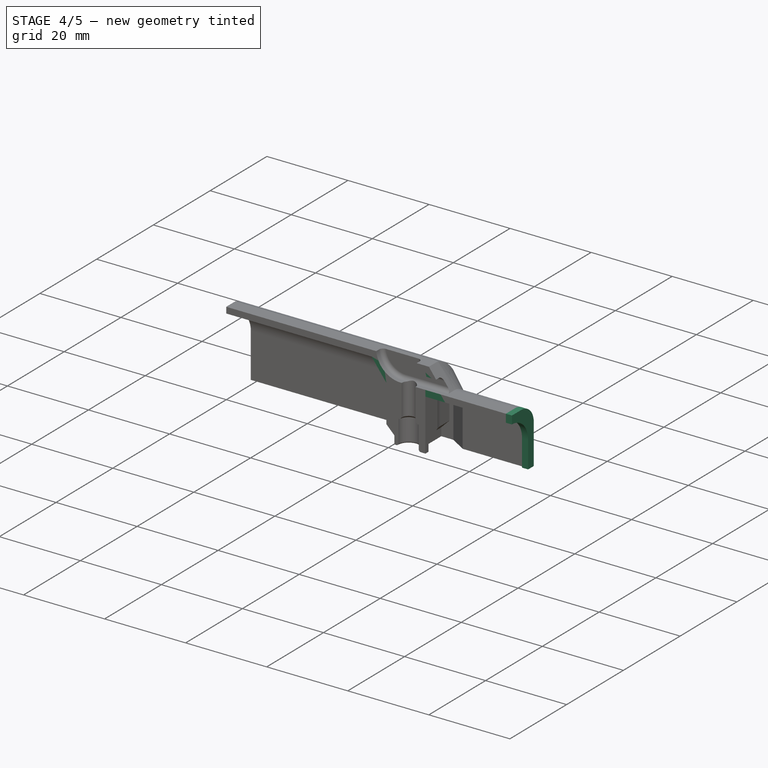
[diagram: stage 4 of 5 — iso view after this stage's code; geometry added in this stage tinted green]
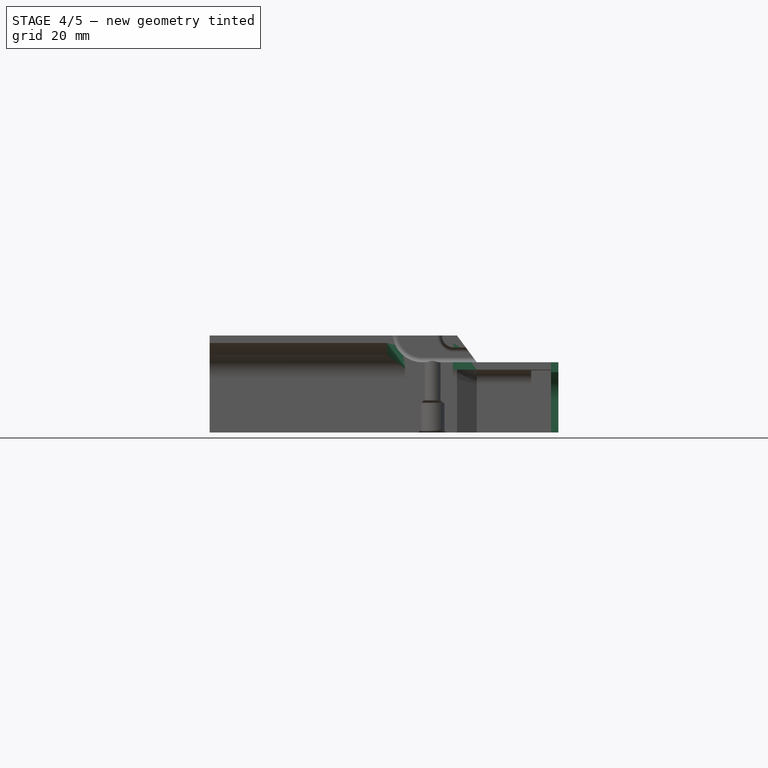
[diagram: stage 4 of 5 — front view after this stage's code; geometry added in this stage tinted green]
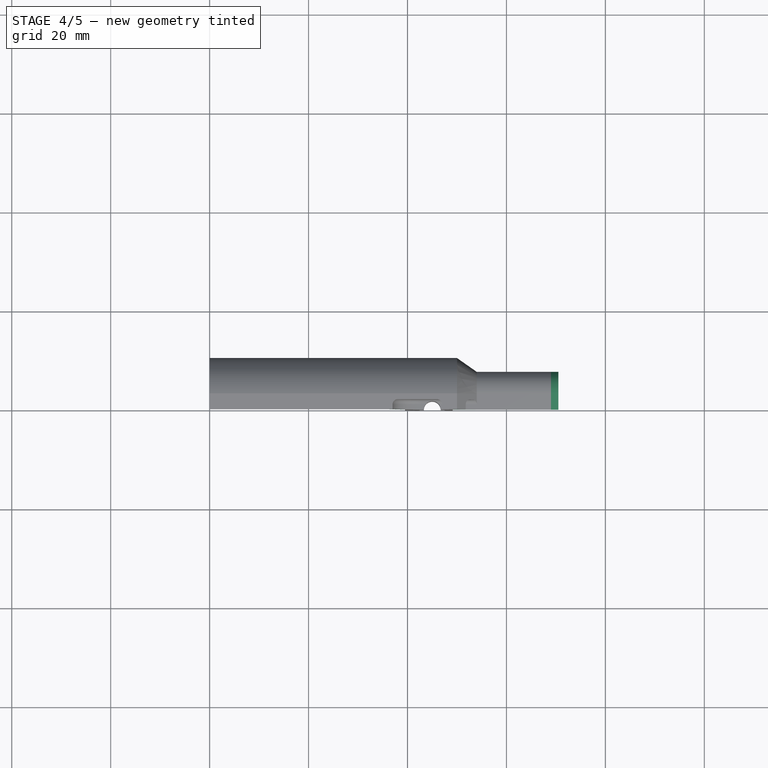
[diagram: stage 4 of 5 — top view after this stage's code; geometry added in this stage tinted green]
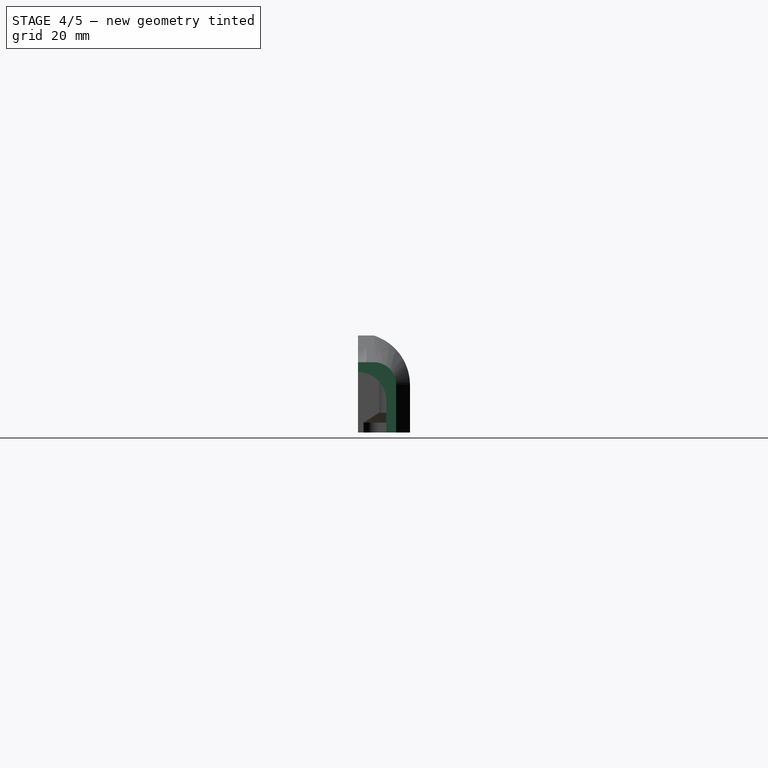
[diagram: stage 4 of 5 — right view after this stage's code; geometry added in this stage tinted green]
FEATURE [PartDesign::Pad] Pad003  label="BananaJackCircle"
  BaseFeature = -> Pocket
  Direction = (1,1,1)
  Length = 1.5
  Length2 = 100
  Placement = pos=(50,-1.11e-14,1.11e-14) rot=(0.57735,0.57735,0.57735;2.0944rad)
  Profile = -> Sketch006
  Type = 0
FEATURE [PartDesign::Line] DatumLine  label="MountingHoleCenter"
  AttacherType = Attacher::AttachEngineLine
  AttachmentOffset = pos=(45,0,0) rot=(0,0,1;0rad)
  Length = 20
  MapMode = 16
  Placement = pos=(45,-1.5e-14,1.5e-14) rot=(0,0,1;0rad)
  ResizeMode = 0
  Support = -> [Z_Axis]
FEATURE [PartDesign::Plane] DatumPlane002  label="SlimTopPlane"
  AttachmentOffset = pos=(0,0,12.69) rot=(0,0,1;0rad)
  Length = 109.32
  MapMode = 5
  Placement = pos=(0,0,12.69) rot=(0,0,1;0rad)
  ResizeMode = 0
  Support = -> [XY_Plane]
  Width = 63.8203
FEATURE [PartDesign::Pad] Pad008  label="RingReinforcementPad"
  BaseFeature = -> Pad003
  Direction = (1,0,0)
  Length = 11
  Length2 = 100
  Placement = pos=(50,-1.11e-14,1.11e-14) rot=(0.57735,0.57735,0.57735;2.0944rad)
  Profile = -> Pad003 [Face17]
  Reversed = true
  Type = 0
  UseCustomVector = true
FEATURE [PartDesign::Body] Body001  label="MountingBoss"
  Group = -> [Sketch004,Sketch007,Pad004,Sketch012,AdditiveLoft001,Pad009,Pocket001]
  Origin = -> Origin001
  Tip = -> Pocket001
FEATURE [Part::MultiFuse] Fusion
  Shapes = -> [Body,Body001]
FEATURE [Part::Cut] Cut
  Base = -> Fusion
  Tool = -> Body002
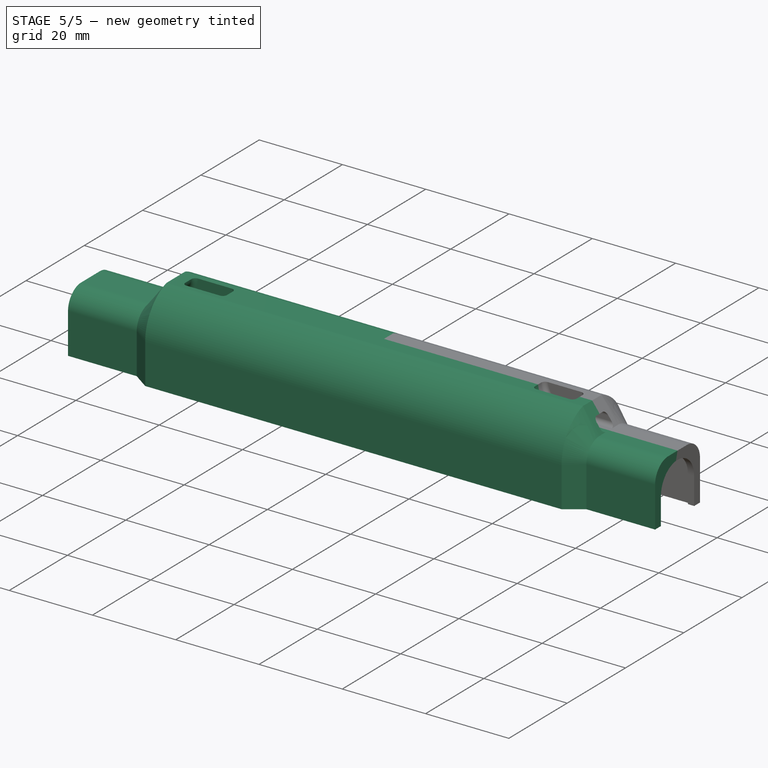
[diagram: stage 5 of 5 — iso view after this stage's code; geometry added in this stage tinted green]
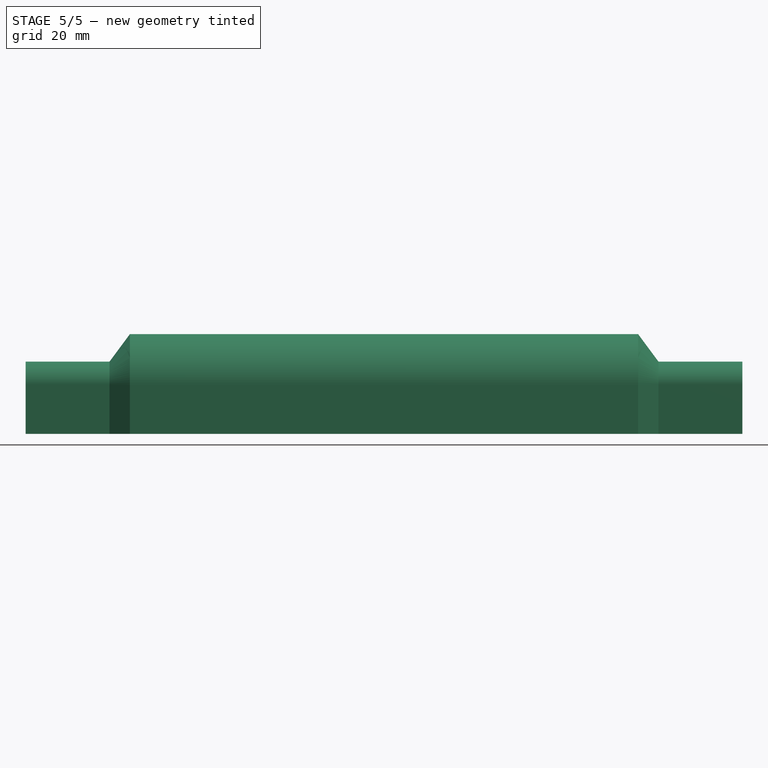
[diagram: stage 5 of 5 — front view after this stage's code; geometry added in this stage tinted green]
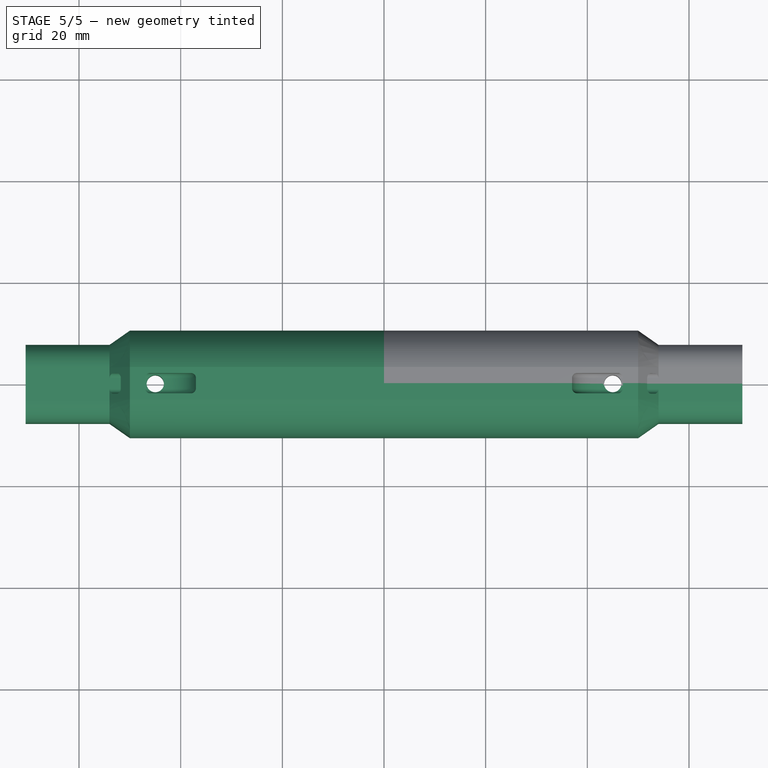
[diagram: stage 5 of 5 — top view after this stage's code; geometry added in this stage tinted green]
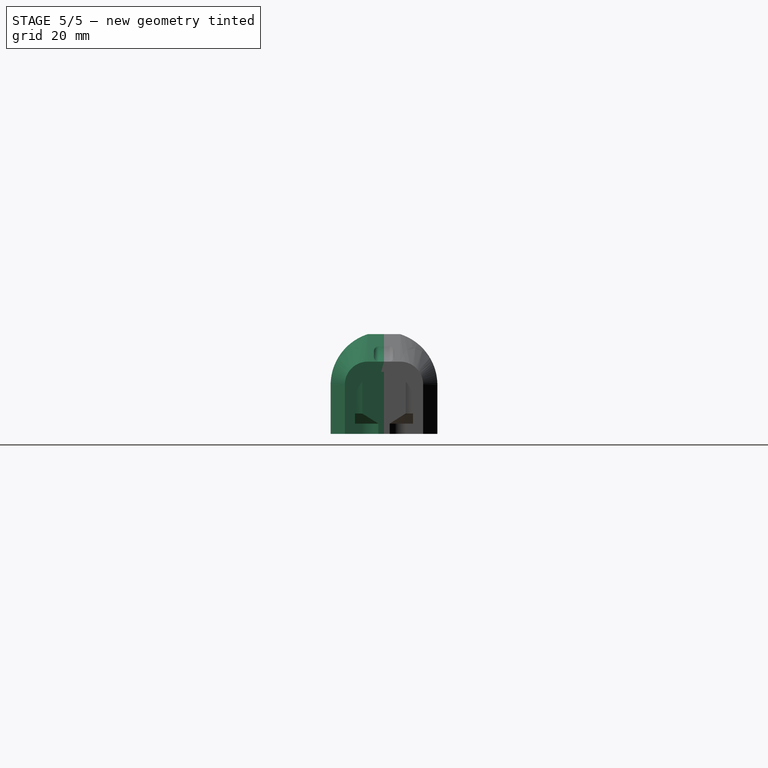
[diagram: stage 5 of 5 — right view after this stage's code; geometry added in this stage tinted green]
FEATURE [Part::Mirroring] Part__Mirroring  label="MirrorXZ"
  Base = (0,0,0)
  Normal = (0,1,0)
  Source = -> Cut
FEATURE [Part::MultiFuse] Fusion001  label="FusionXZ"
  Shapes = -> [Part__Mirroring,Cut]
FEATURE [Part::Mirroring] Part__Mirroring001  label="MirrorYZ"
  Base = (0,0,0)
  Normal = (1,0,0)
  Source = -> Fusion001
FEATURE [Part::MultiFuse] Fusion002  label="FusionYZ"
  Shapes = -> [Part__Mirroring001,Fusion001]
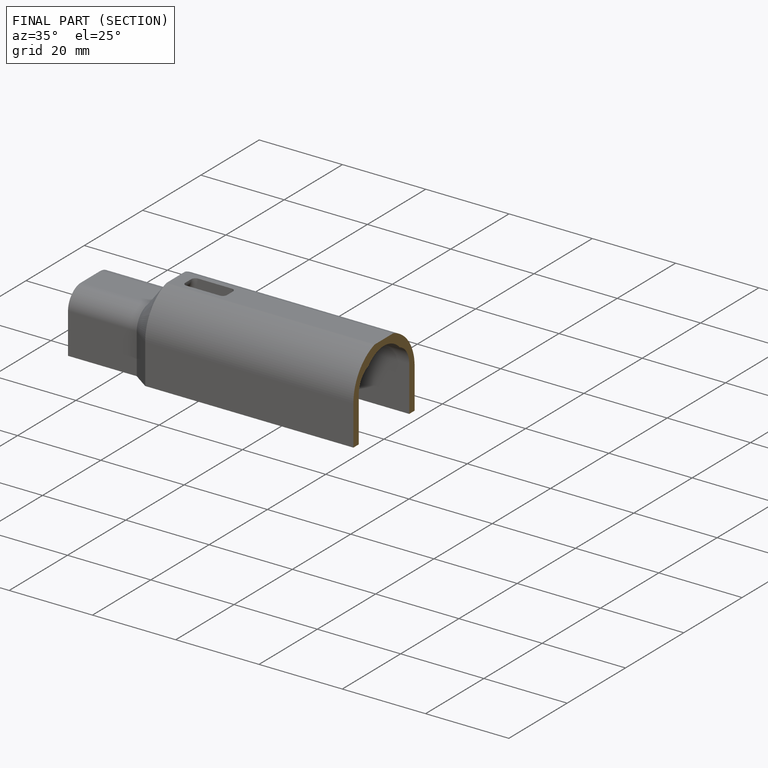
[diagram: finished part — half-section view (interior)]
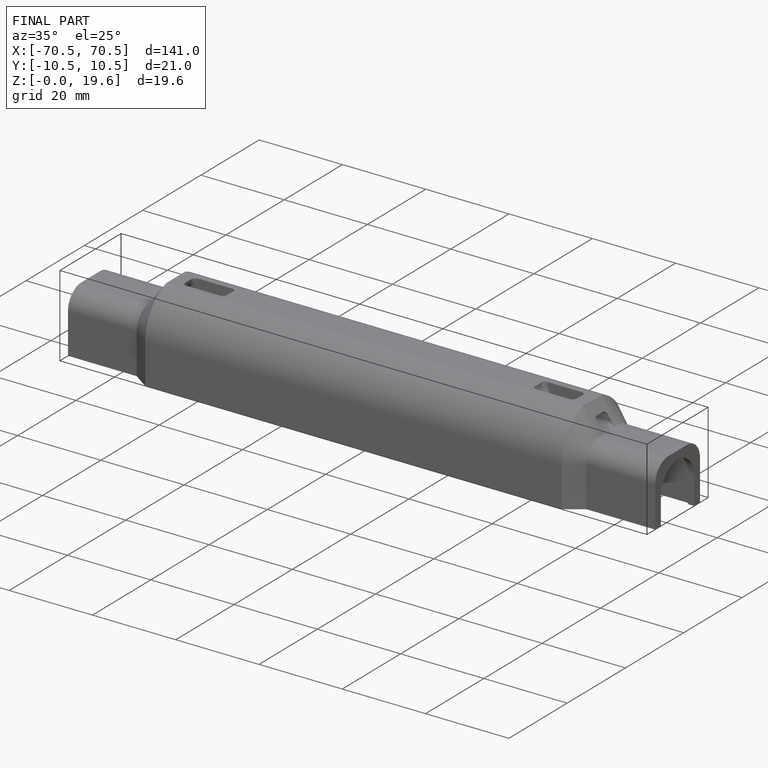
[diagram: finished part — iso view with bounding-box wireframe]
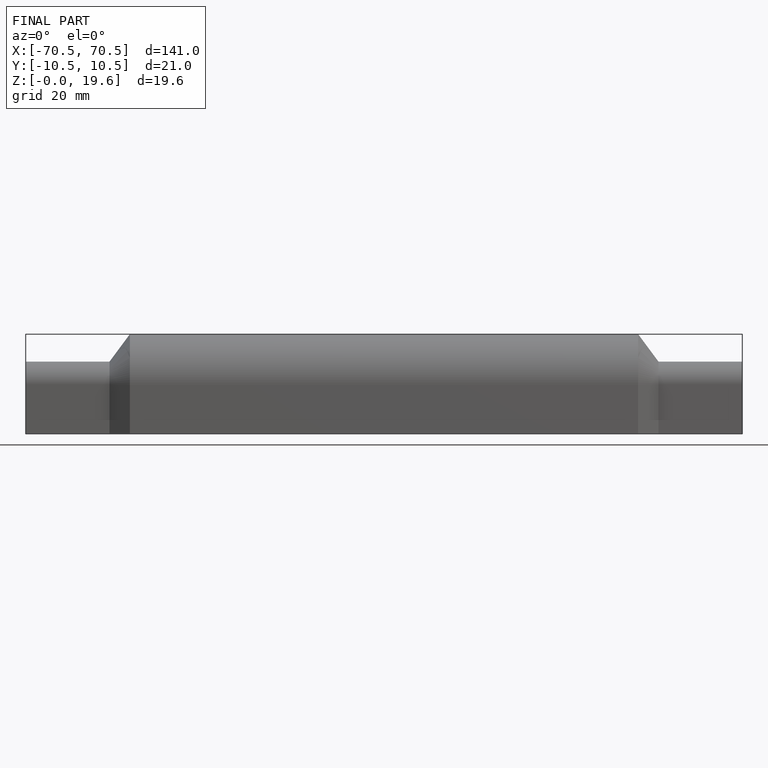
[diagram: finished part — front view with bounding-box wireframe]
